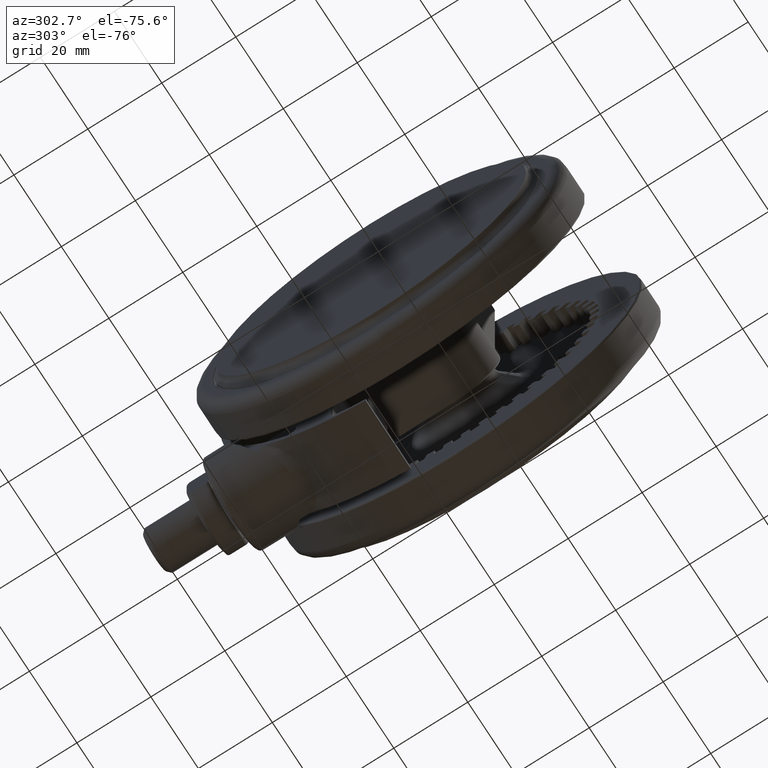
[diagram: clean part render]
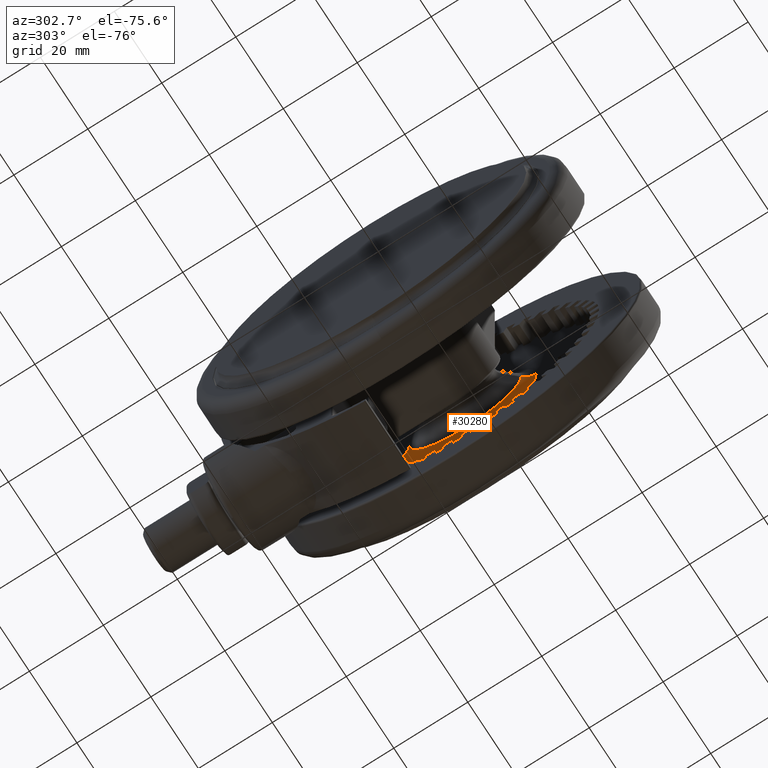
[diagram: same view with one face highlighted and labeled with its STEP entity id]
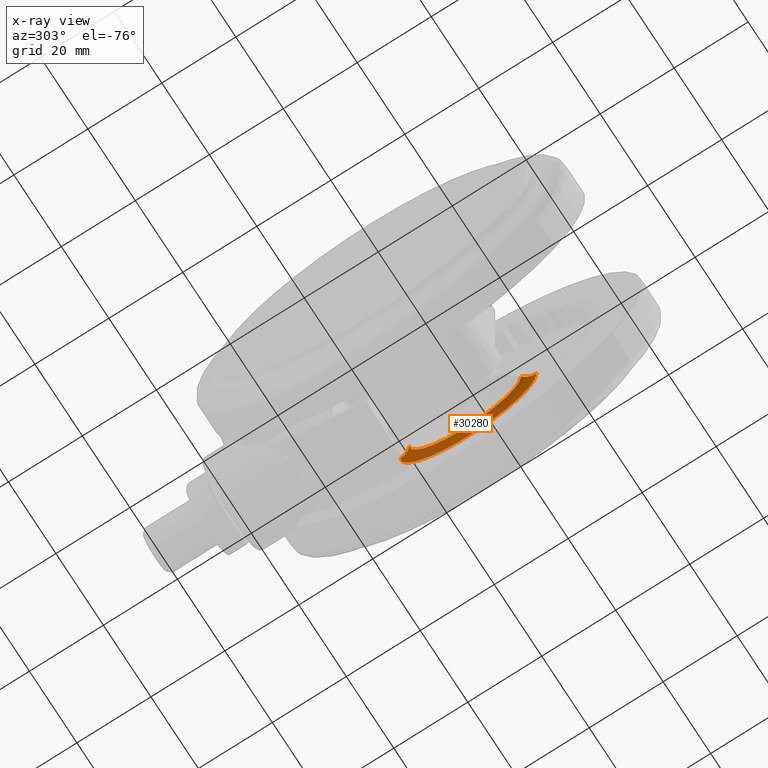
[diagram: x-ray of the same camera — body ghosted, the highlighted face saturated]
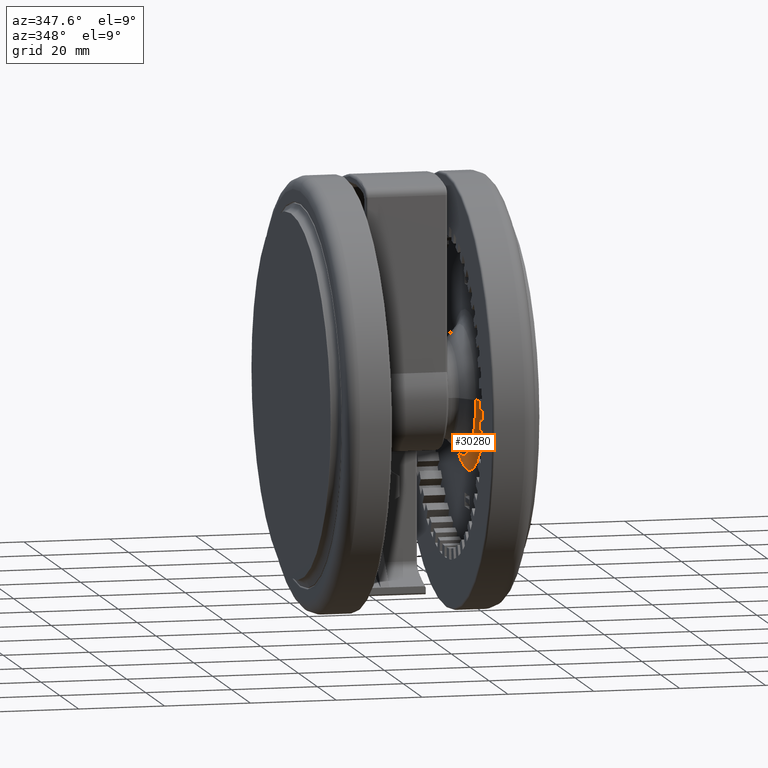
[diagram: same view with one face highlighted and labeled with its STEP entity id]
A machine part, auxiliary view. The second image highlights one B-rep face of the part: STEP entity #30280.
The next image is the same camera in x-ray: the body ghosted, the highlighted face saturated — about 29% of this face is hidden behind the body in this view.
A second angle (auxiliary view) of the same face is appended — the face is thin or edge-on in the first view.
In plain terms, the highlighted toroidal blend (fillet) surface has major radius 18.433 mm and minor (blend) radius 5 mm.
Its self-contained STEP definition (entity closure, byte-faithful):
#2377 = CARTESIAN_POINT ( 'NONE',  ( 1.613518346224195000E-014, -18.43303437365925400, -7.599999999999993400 ) ) ;
#2920 = CARTESIAN_POINT ( 'NONE',  ( 1.387778780781445700E-014, 18.43303437365925400, -12.59999999999999300 ) ) ;
#4339 = CARTESIAN_POINT ( 'NONE',  ( 1.387778780781445700E-014, -6.650260793976117100E-016, -12.59999999999999300 ) ) ;
#5380 = DIRECTION ( 'NONE',  ( 0.0000000000000000000, 0.0000000000000000000, 1.000000000000000000 ) ) ;
#5900 = CARTESIAN_POINT ( 'NONE',  ( 1.387778780781445700E-014, -6.328593369204067500E-016, -8.900299633020271300 ) ) ;
#5912 = CARTESIAN_POINT ( 'NONE',  ( 1.387778780781445700E-014, -6.215539880300283300E-016, -7.599999999999993400 ) ) ;
#7967 = CIRCLE ( 'NONE', #19288, 15.06967040367769400 ) ;
#8421 = DIRECTION ( 'NONE',  ( 0.0000000000000000000, -1.000000000000000000, 0.0000000000000000000 ) ) ;
#8434 = DIRECTION ( 'NONE',  ( 0.0000000000000000000, 1.000000000000000000, 0.0000000000000000000 ) ) ;
#8934 = AXIS2_PLACEMENT_3D ( 'NONE', #25052, #10042, #27543 ) ;
#9482 = AXIS2_PLACEMENT_3D ( 'NONE', #2920, #20391, #5380 ) ;
#9868 = EDGE_CURVE ( 'NONE', #31825, #17778, #14830, .T. ) ;
#10042 = DIRECTION ( 'NONE',  ( 1.000000000000000000, 1.224646799147353200E-016, -1.064759150911046400E-033 ) ) ;
#10214 = AXIS2_PLACEMENT_3D ( 'NONE', #5912, #23438, #8434 ) ;
#11224 = ORIENTED_EDGE ( 'NONE', *, *, #9868, .F. ) ;
#12164 = CARTESIAN_POINT ( 'NONE',  ( 1.387778780781445700E-014, 15.06967040367769400, -8.900299633020271300 ) ) ;
#14125 = VERTEX_POINT ( 'NONE', #19042 ) ;
#14276 = DIRECTION ( 'NONE',  ( 0.0000000000000000000, 1.000000000000000000, -8.694418273516684400E-018 ) ) ;
#14830 = CIRCLE ( 'NONE', #8934, 5.000000000000000900 ) ;
#14842 = CIRCLE ( 'NONE', #9482, 5.000000000000000000 ) ;
#16788 = DIRECTION ( 'NONE',  ( 0.0000000000000000000, -8.694418273516684400E-018, -1.000000000000000000 ) ) ;
#17778 = VERTEX_POINT ( 'NONE', #2377 ) ;
#18215 = FACE_OUTER_BOUND ( 'NONE', #18959, .T. ) ;
#18407 = AXIS2_PLACEMENT_3D ( 'NONE', #4339, #16788, #14276 ) ;
#18959 = EDGE_LOOP ( 'NONE', ( #11224, #28527, #25633, #29313 ) ) ;
#19042 = CARTESIAN_POINT ( 'NONE',  ( 1.387778780781445700E-014, 18.43303437365925400, -7.599999999999993400 ) ) ;
#19288 = AXIS2_PLACEMENT_3D ( 'NONE', #5900, #23422, #8421 ) ;
#19609 = VERTEX_POINT ( 'NONE', #12164 ) ;
#20391 = DIRECTION ( 'NONE',  ( -1.000000000000000000, 0.0000000000000000000, -0.0000000000000000000 ) ) ;
#23001 = EDGE_CURVE ( 'NONE', #19609, #31825, #7967, .T. ) ;
#23278 = CIRCLE ( 'NONE', #10214, 18.43303437365925400 ) ;
#23422 = DIRECTION ( 'NONE',  ( 0.0000000000000000000, 2.260548751114340100E-017, -1.000000000000000000 ) ) ;
#23438 = DIRECTION ( 'NONE',  ( -0.0000000000000000000, 8.694418273516684400E-018, 1.000000000000000000 ) ) ;
#25052 = CARTESIAN_POINT ( 'NONE',  ( 1.613518346224195000E-014, -18.43303437365925400, -12.59999999999999300 ) ) ;
#25633 = ORIENTED_EDGE ( 'NONE', *, *, #26507, .T. ) ;
#26507 = EDGE_CURVE ( 'NONE', #19609, #14125, #14842, .T. ) ;
#27543 = DIRECTION ( 'NONE',  ( -1.224646799147350200E-016, 1.000000000000000000, 0.0000000000000000000 ) ) ;
#28527 = ORIENTED_EDGE ( 'NONE', *, *, #23001, .F. ) ;
#29313 = ORIENTED_EDGE ( 'NONE', *, *, #29562, .F. ) ;
#29562 = EDGE_CURVE ( 'NONE', #17778, #14125, #23278, .T. ) ;
#30280 = ADVANCED_FACE ( 'NONE', ( #18215 ), #30707, .F. ) ;
#30707 = TOROIDAL_SURFACE ( 'NONE', #18407, 18.43303437365925400, 5.000000000000000000 ) ;
#31029 = CARTESIAN_POINT ( 'NONE',  ( 1.592923681623167800E-014, -15.06967040367769400, -8.900299633020271300 ) ) ;
#31825 = VERTEX_POINT ( 'NONE', #31029 ) ;